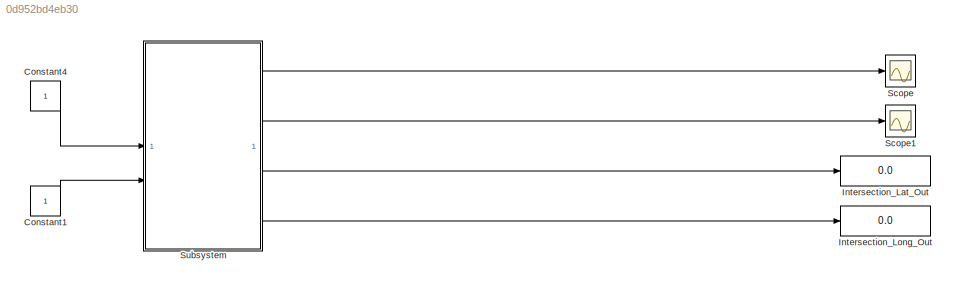
MODEL slx_0d952bd4eb30
KIND model
CONFIG AbsTol = auto
CONFIG EnableMultiTasking = off
CONFIG FixedStep = auto
CONFIG MaxStep = auto
CONFIG MinStep = auto
CONFIG RelTol = 1e-3
CONFIG SampleTimeConstraint = Unconstrained
CONFIG SolverName = VariableStepAuto
CONFIG StartTime = 0.0
CONFIG StopTime = 10.0
WORKSPACE source: mxarray member
WORKSPACE seed = 0
BLOCK [Constant] Constant1
BLOCK [Constant] Constant4
BLOCK [Display] Intersection_Lat_Out
  Format = long
BLOCK [Display] Intersection_Long_Out
  Format = long
BLOCK [Scope] Scope
  Floating = off
  NumInputPorts = 1
  ScopeSpecificationString = Simulink.scopes.TimeScopeBlockCfg('CurrentConfiguration', extmgr.ConfigurationSet(extmgr.Configuration('Core','General UI',true),extmgr.Configuration('Core','Source UI',true),extmgr.Configuration('Sources','WiredSimulink',true),extmgr.Configuration('Visuals','Time Domain',true,'SerializedDisplays',{struct('MinYLimReal','-13.83652','MaxYLimReal','134.52868','YLabelReal','','MinYLimMag','0.00000','M...<+1459ch>
BLOCK [Scope] Scope1
  Floating = off
  NumInputPorts = 1
  ScopeSpecificationString = Simulink.scopes.TimeScopeBlockCfg('CurrentConfiguration', extmgr.ConfigurationSet(extmgr.Configuration('Core','General UI',true),extmgr.Configuration('Core','Source UI',true),extmgr.Configuration('Sources','WiredSimulink',true,'DataLoggingVariableName','ScopeData1'),extmgr.Configuration('Visuals','Time Domain',true,'SerializedDisplays',{struct('MinYLimReal','-28.79782','MaxYLimReal','269.18038','Y...<+1469ch>
BLOCK [SubSystem] Subsystem
  ReferencedSubsystem = Intersection_Long_Lat_Generator_Sub
LINE Constant1:1 -> Subsystem:2
LINE Constant4:1 -> Subsystem:1
LINE Subsystem:1 -> Scope:1
LINE Subsystem:2 -> Scope1:1
LINE Subsystem:3 -> Intersection_Lat_Out:1
LINE Subsystem:4 -> Intersection_Long_Out:1
